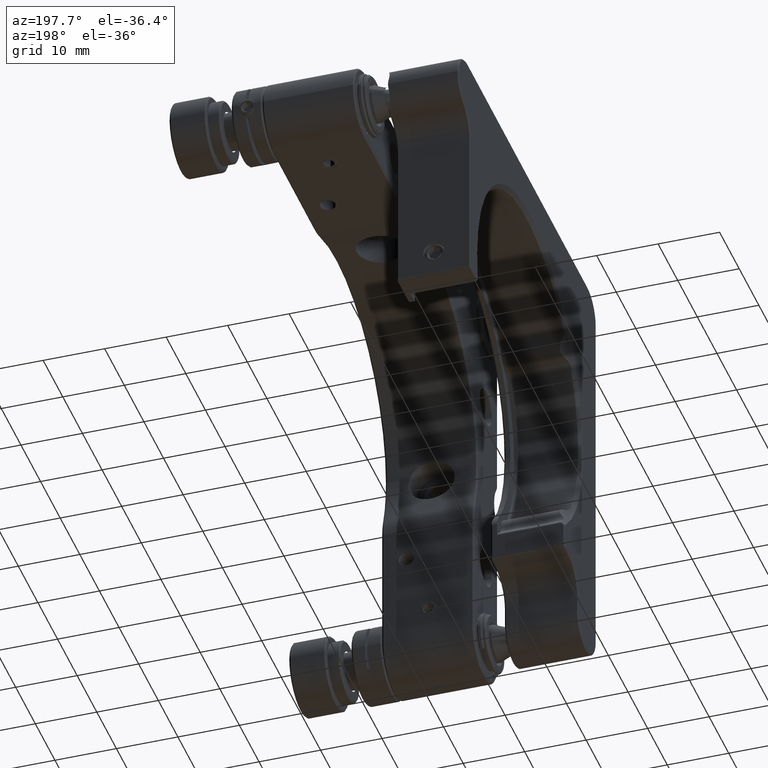
[diagram: clean part render]
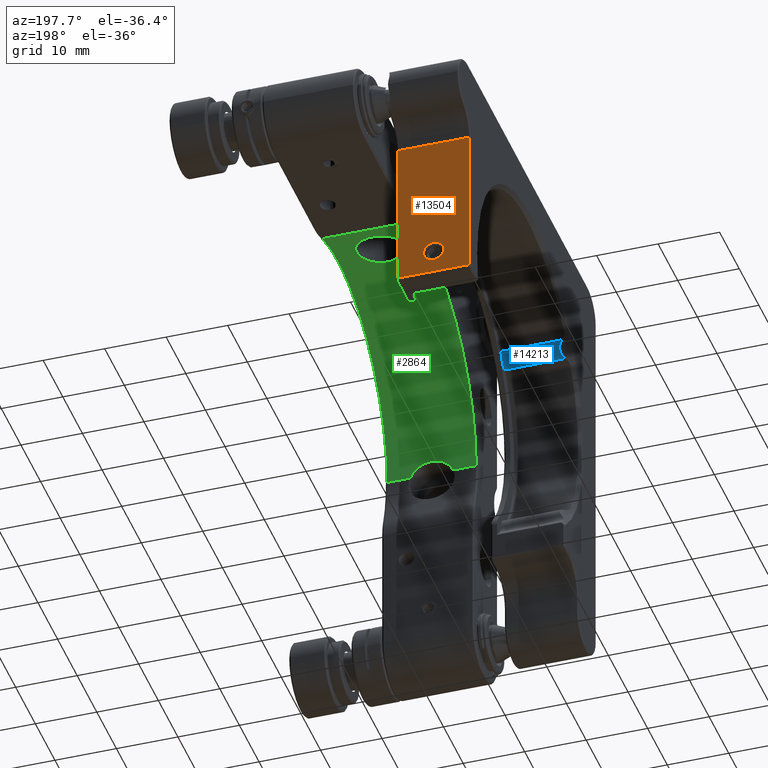
[diagram: same view with three faces highlighted in distinct colors, each labeled with its STEP entity id]
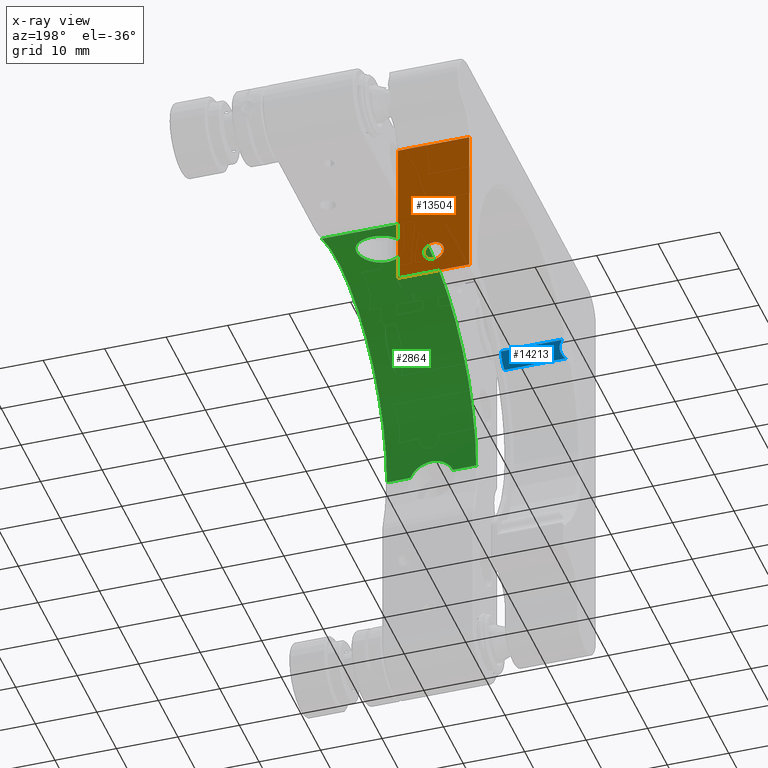
[diagram: x-ray of the same camera — body ghosted, the three highlighted faces saturated]
A machine part, auxiliary view with three faces highlighted in distinct colors.
The next image is the same camera in x-ray (body ghosted, the three faces saturated) — at least one of them is partly hidden behind the body in this view.
Their STEP definitions:

[orange] entity #13504 — the highlighted planar face has unit normal (0, -1, -0).
#392 = CARTESIAN_POINT ( 'NONE',  ( -15.77561932291418678, 27.64578127597494017, -20.49999999999996803 ) ) ;
#492 = VERTEX_POINT ( 'NONE', #6723 ) ;
#1038 = DIRECTION ( 'NONE',  ( -0.000000000000000000, -1.000000000000000000, -5.947623346206195330E-16 ) ) ;
#1345 = CARTESIAN_POINT ( 'NONE',  ( -15.77561932291418678, 27.64578127597492596, 4.001676391367753105 ) ) ;
#1489 = LINE ( 'NONE', #13045, #3906 ) ;
#1608 = CARTESIAN_POINT ( 'NONE',  ( -3.975619322914198506, 27.64578127597492596, 4.001676391367753105 ) ) ;
#2141 = EDGE_LOOP ( 'NONE', ( #4831, #7122, #14070, #10346 ) ) ;
#2482 = ORIENTED_EDGE ( 'NONE', *, *, #13797, .T. ) ;
#2495 = DIRECTION ( 'NONE',  ( 1.000000000000000000, -0.000000000000000000, -0.000000000000000000 ) ) ;
#2608 = EDGE_CURVE ( 'NONE', #7869, #8217, #7479, .T. ) ;
#2648 = FACE_OUTER_BOUND ( 'NONE', #2141, .T. ) ;
#2726 = DIRECTION ( 'NONE',  ( 0.000000000000000000, -1.000000000000000000, -5.161443248719169459E-16 ) ) ;
#2743 = EDGE_CURVE ( 'NONE', #492, #7869, #10936, .T. ) ;
#2761 = CARTESIAN_POINT ( 'NONE',  ( -4.175619322914223552, 27.64578127597494017, -20.99999999999997158 ) ) ;
#3903 = LINE ( 'NONE', #2761, #8363 ) ;
#3906 = VECTOR ( 'NONE', #2495, 1000.000000000000000 ) ;
#4831 = ORIENTED_EDGE ( 'NONE', *, *, #7947, .F. ) ;
#5188 = EDGE_CURVE ( 'NONE', #14472, #8576, #8652, .T. ) ;
#5482 = CIRCLE ( 'NONE', #8193, 1.649999999999998579 ) ;
#5758 = VECTOR ( 'NONE', #9871, 1000.000000000000000 ) ;
#5998 = CARTESIAN_POINT ( 'NONE',  ( -9.975619322914191400, 27.64578127597494017, -14.94999999999997087 ) ) ;
#6320 = DIRECTION ( 'NONE',  ( 0.000000000000000000, 0.000000000000000000, -1.000000000000000000 ) ) ;
#6723 = CARTESIAN_POINT ( 'NONE',  ( -4.175619322914223552, 27.64578127597492596, 4.001676391367753105 ) ) ;
#6771 = VERTEX_POINT ( 'NONE', #13104 ) ;
#6972 = CARTESIAN_POINT ( 'NONE',  ( -15.77561932291418678, 27.64578127597494017, -20.49999999999996803 ) ) ;
#7122 = ORIENTED_EDGE ( 'NONE', *, *, #2608, .F. ) ;
#7351 = CARTESIAN_POINT ( 'NONE',  ( -3.975619322914198506, 27.64578127597494017, -20.99999999999997158 ) ) ;
#7479 = LINE ( 'NONE', #392, #5758 ) ;
#7869 = VERTEX_POINT ( 'NONE', #1345 ) ;
#7947 = EDGE_CURVE ( 'NONE', #8217, #6771, #1489, .T. ) ;
#8193 = AXIS2_PLACEMENT_3D ( 'NONE', #9882, #14588, #6320 ) ;
#8217 = VERTEX_POINT ( 'NONE', #6972 ) ;
#8363 = VECTOR ( 'NONE', #13467, 1000.000000000000000 ) ;
#8576 = VERTEX_POINT ( 'NONE', #5998 ) ;
#8652 = CIRCLE ( 'NONE', #12842, 1.649999999999998579 ) ;
#9871 = DIRECTION ( 'NONE',  ( 0.000000000000000000, 5.161443248719169459E-16, -1.000000000000000000 ) ) ;
#9882 = CARTESIAN_POINT ( 'NONE',  ( -9.975619322914191400, 27.64578127597494017, -16.59999999999996945 ) ) ;
#10346 = ORIENTED_EDGE ( 'NONE', *, *, #11374, .F. ) ;
#10936 = LINE ( 'NONE', #1608, #12904 ) ;
#11005 = DIRECTION ( 'NONE',  ( -1.000000000000000000, 0.000000000000000000, 0.000000000000000000 ) ) ;
#11050 = FACE_BOUND ( 'NONE', #13719, .T. ) ;
#11374 = EDGE_CURVE ( 'NONE', #6771, #492, #3903, .T. ) ;
#11510 = CARTESIAN_POINT ( 'NONE',  ( -9.975619322914191400, 27.64578127597494017, -16.59999999999996945 ) ) ;
#11747 = DIRECTION ( 'NONE',  ( 0.000000000000000000, 0.000000000000000000, -1.000000000000000000 ) ) ;
#12060 = DIRECTION ( 'NONE',  ( 0.000000000000000000, -5.161443248719169459E-16, 1.000000000000000000 ) ) ;
#12294 = CARTESIAN_POINT ( 'NONE',  ( -9.975619322914191400, 27.64578127597494017, -18.24999999999996803 ) ) ;
#12842 = AXIS2_PLACEMENT_3D ( 'NONE', #11510, #1038, #11747 ) ;
#12904 = VECTOR ( 'NONE', #11005, 1000.000000000000000 ) ;
#13005 = ORIENTED_EDGE ( 'NONE', *, *, #5188, .T. ) ;
#13045 = CARTESIAN_POINT ( 'NONE',  ( -3.975619322914198506, 27.64578127597494017, -20.49999999999996803 ) ) ;
#13104 = CARTESIAN_POINT ( 'NONE',  ( -4.175619322914223552, 27.64578127597494017, -20.49999999999996803 ) ) ;
#13279 = PLANE ( 'NONE',  #13338 ) ;
#13338 = AXIS2_PLACEMENT_3D ( 'NONE', #7351, #2726, #12060 ) ;
#13467 = DIRECTION ( 'NONE',  ( 0.000000000000000000, -5.161443248719169459E-16, 1.000000000000000000 ) ) ;
#13504 = ADVANCED_FACE ( 'NONE', ( #11050, #2648 ), #13279, .F. ) ;
#13719 = EDGE_LOOP ( 'NONE', ( #13005, #2482 ) ) ;
#13797 = EDGE_CURVE ( 'NONE', #8576, #14472, #5482, .T. ) ;
#14070 = ORIENTED_EDGE ( 'NONE', *, *, #2743, .F. ) ;
#14472 = VERTEX_POINT ( 'NONE', #12294 ) ;
#14588 = DIRECTION ( 'NONE',  ( -0.000000000000000000, -1.000000000000000000, -5.947623346206195330E-16 ) ) ;

[blue] entity #14213 — the highlighted cylindrical surface (edge-blend (fillet) strip) has radius 2.5 mm, axis along (-1, 0, 0).
#932 = CARTESIAN_POINT ( 'NONE',  ( -4.975619322914199394, -24.85162957107865012, 0.3844438693433455123 ) ) ;
#983 = DIRECTION ( 'NONE',  ( -1.000000000000000000, 0.000000000000000000, 0.000000000000000000 ) ) ;
#1237 = ORIENTED_EDGE ( 'NONE', *, *, #1344, .T. ) ;
#1344 = EDGE_CURVE ( 'NONE', #1915, #3163, #11089, .T. ) ;
#1540 = CARTESIAN_POINT ( 'NONE',  ( -14.89309519452553943, -24.13905889188261966, -2.011853905798576037 ) ) ;
#1915 = VERTEX_POINT ( 'NONE', #6451 ) ;
#2116 = CARTESIAN_POINT ( 'NONE',  ( -14.38916313151577064, -23.05023161092638162, -1.354386013233912944 ) ) ;
#2147 = ORIENTED_EDGE ( 'NONE', *, *, #12085, .F. ) ;
#2477 = VECTOR ( 'NONE', #4811, 1000.000000000000000 ) ;
#3131 = EDGE_CURVE ( 'NONE', #4060, #8993, #5591, .T. ) ;
#3163 = VERTEX_POINT ( 'NONE', #11756 ) ;
#3243 = DIRECTION ( 'NONE',  ( 0.000000000000000000, -2.775557561562893323E-15, -1.000000000000000000 ) ) ;
#3388 = DIRECTION ( 'NONE',  ( -1.000000000000000000, 0.000000000000000000, 0.000000000000000000 ) ) ;
#3527 = CARTESIAN_POINT ( 'NONE',  ( 2.095448488951271671, -24.13905889188261966, -2.011853905798576037 ) ) ;
#3882 = CARTESIAN_POINT ( 'NONE',  ( -14.89309519452554120, -22.35255679983246679, 0.3163609491950783448 ) ) ;
#4060 = VERTEX_POINT ( 'NONE', #1540 ) ;
#4430 = CARTESIAN_POINT ( 'NONE',  ( -14.81812998388043390, -24.02533213774107779, -1.978035758787771714 ) ) ;
#4811 = DIRECTION ( 'NONE',  ( -1.000000000000000000, 0.000000000000000000, 0.000000000000000000 ) ) ;
#5312 = CYLINDRICAL_SURFACE ( 'NONE', #8695, 2.499999999999998224 ) ;
#5591 = B_SPLINE_CURVE_WITH_KNOTS ( 'NONE', 3,
 ( #12749, #4430, #5811, #9280, #15131, #7120, #10587, #2116, #11521, #14067, #8209, #11687, #8127, #9136, #12911, #12828 ),
 .UNSPECIFIED., .F., .F.,
 ( 4, 2, 2, 2, 2, 2, 2, 4 ),
 ( 2.443272006722786936E-07, 0.0004170436206648446857, 0.0008338429141290171686, 0.001250642207593189543, 0.001667441501057362026, 0.002501040087985701137, 0.002917839381449869717, 0.003334638674914038297 ),
 .UNSPECIFIED. ) ;
#5811 = CARTESIAN_POINT ( 'NONE',  ( -14.74893195429165793, -23.91216107078257380, -1.935644279927496436 ) ) ;
#5816 = CARTESIAN_POINT ( 'NONE',  ( 2.095448488951271671, -22.35255679983246679, 0.3163609491950783448 ) ) ;
#6451 = CARTESIAN_POINT ( 'NONE',  ( -4.975619322914199394, -22.35255679983246679, 0.3163609491950783448 ) ) ;
#7120 = CARTESIAN_POINT ( 'NONE',  ( -14.47528064229390310, -23.35474735833928150, -1.622208889450333258 ) ) ;
#7133 = DIRECTION ( 'NONE',  ( 1.000000000000000000, -0.000000000000000000, -0.000000000000000000 ) ) ;
#7786 = CARTESIAN_POINT ( 'NONE',  ( 2.095448488951271671, -24.85162957107865012, 0.3844438693433455123 ) ) ;
#8082 = EDGE_LOOP ( 'NONE', ( #10903, #2147, #1237, #8787 ) ) ;
#8127 = CARTESIAN_POINT ( 'NONE',  ( -14.62337906851865554, -22.41037020153542159, -0.1685311832697529155 ) ) ;
#8209 = CARTESIAN_POINT ( 'NONE',  ( -14.42835519124426469, -22.56912482879736714, -0.6689413095605695192 ) ) ;
#8695 = AXIS2_PLACEMENT_3D ( 'NONE', #7786, #983, #11254 ) ;
#8787 = ORIENTED_EDGE ( 'NONE', *, *, #14317, .F. ) ;
#8993 = VERTEX_POINT ( 'NONE', #3882 ) ;
#9136 = CARTESIAN_POINT ( 'NONE',  ( -14.74864066636700421, -22.36748097570729854, 0.07697927900878037688 ) ) ;
#9280 = CARTESIAN_POINT ( 'NONE',  ( -14.62405979788464805, -23.68694141858558666, -1.831162501580395396 ) ) ;
#9361 = LINE ( 'NONE', #5816, #2477 ) ;
#9520 = LINE ( 'NONE', #3527, #12390 ) ;
#10523 = FACE_OUTER_BOUND ( 'NONE', #8082, .T. ) ;
#10587 = CARTESIAN_POINT ( 'NONE',  ( -14.43904094983555453, -23.24987177676475270, -1.539857546687694478 ) ) ;
#10903 = ORIENTED_EDGE ( 'NONE', *, *, #3131, .T. ) ;
#11089 = CIRCLE ( 'NONE', #13545, 2.499999999999998224 ) ;
#11254 = DIRECTION ( 'NONE',  ( 0.000000000000000000, 0.000000000000000000, -1.000000000000000000 ) ) ;
#11521 = CARTESIAN_POINT ( 'NONE',  ( -14.37576520968918281, -22.95439908096490100, -1.249518125416835934 ) ) ;
#11687 = CARTESIAN_POINT ( 'NONE',  ( -14.56708827300837683, -22.44202162027854186, -0.2946375557147639657 ) ) ;
#11756 = CARTESIAN_POINT ( 'NONE',  ( -4.975619322914199394, -24.13905889188261966, -2.011853905798576037 ) ) ;
#12085 = EDGE_CURVE ( 'NONE', #1915, #8993, #9361, .T. ) ;
#12390 = VECTOR ( 'NONE', #7133, 1000.000000000000000 ) ;
#12749 = CARTESIAN_POINT ( 'NONE',  ( -14.89309519452553943, -24.13905889188261966, -2.011853905798576037 ) ) ;
#12828 = CARTESIAN_POINT ( 'NONE',  ( -14.89309519452554120, -22.35255679983246679, 0.3163609491950783448 ) ) ;
#12911 = CARTESIAN_POINT ( 'NONE',  ( -14.81801327716515360, -22.35579300184372542, 0.1975719150148150804 ) ) ;
#13545 = AXIS2_PLACEMENT_3D ( 'NONE', #932, #3388, #3243 ) ;
#14067 = CARTESIAN_POINT ( 'NONE',  ( -14.37533124781094074, -22.70026947556154084, -0.9189789596604712729 ) ) ;
#14213 = ADVANCED_FACE ( 'NONE', ( #10523 ), #5312, .T. ) ;
#14317 = EDGE_CURVE ( 'NONE', #4060, #3163, #9520, .T. ) ;
#15131 = CARTESIAN_POINT ( 'NONE',  ( -14.56785693124854220, -23.57365161692961664, -1.768248398933489174 ) ) ;

[green] entity #2864 — the highlighted cylindrical surface (partial cylindrical patch) has radius 25 mm, axis along (1, 0, 0).
#84 = CARTESIAN_POINT ( 'NONE',  ( 6.355119055246450266, -4.686390649295450572, 8.322494517069165099 ) ) ;
#116 = VERTEX_POINT ( 'NONE', #1769 ) ;
#210 = DIRECTION ( 'NONE',  ( 1.000000000000000000, 0.000000000000000000, 0.000000000000000000 ) ) ;
#306 = CARTESIAN_POINT ( 'NONE',  ( 4.457631252428867263, -2.515058442627934987, 8.400222909996664100 ) ) ;
#474 = CARTESIAN_POINT ( 'NONE',  ( 9.297112274175514557, -27.62617713439049538, -14.46940377622323126 ) ) ;
#625 = CARTESIAN_POINT ( 'NONE',  ( 11.74428386065613061, -0.8177761393367735110, 8.328906730681822523 ) ) ;
#691 = CARTESIAN_POINT ( 'NONE',  ( 10.31122267623304900, 1.661503445194326689, 8.013969662153218820 ) ) ;
#759 = CARTESIAN_POINT ( 'NONE',  ( 0.7696620513243588313, 5.407908999789143856, 7.042857142857173791 ) ) ;
#802 = VECTOR ( 'NONE', #12456, 1000.000000000000000 ) ;
#1128 = EDGE_LOOP ( 'NONE', ( #11578, #3823 ) ) ;
#1192 = DIRECTION ( 'NONE',  ( 1.000000000000000000, 0.000000000000000000, 0.000000000000000000 ) ) ;
#1245 = CARTESIAN_POINT ( 'NONE',  ( 8.019662051324344176, -5.067071376953116157, 8.289304932038605855 ) ) ;
#1333 = CIRCLE ( 'NONE', #10438, 25.00000000000000000 ) ;
#1369 = CARTESIAN_POINT ( 'NONE',  ( 0.5196620513243446204, -2.717071376953199113, -16.59999999999998721 ) ) ;
#1445 = EDGE_CURVE ( 'NONE', #11433, #7546, #8125, .T. ) ;
#1463 = CARTESIAN_POINT ( 'NONE',  ( 4.292627433277213633, -1.798732177915031594, 8.384289896191960523 ) ) ;
#1484 = CARTESIAN_POINT ( 'NONE',  ( 8.206797234739250158, -27.60638554727553995, -14.25009784447338390 ) ) ;
#1568 = CARTESIAN_POINT ( 'NONE',  ( 9.803016966641262542, -27.64459070681727226, -14.69601071402074233 ) ) ;
#1615 = CARTESIAN_POINT ( 'NONE',  ( 8.993902020358929050, -4.946751401980003848, 8.300419201644013256 ) ) ;
#1683 = ORIENTED_EDGE ( 'NONE', *, *, #8708, .T. ) ;
#1684 = CARTESIAN_POINT ( 'NONE',  ( 11.65186799902387094, -2.281152442412911263, 8.397353009905076604 ) ) ;
#1704 = CARTESIAN_POINT ( 'NONE',  ( 7.648934261970614656, -27.60768334695863402, -14.26372026764737733 ) ) ;
#1763 = B_SPLINE_CURVE_WITH_KNOTS ( 'NONE', 3,
 ( #12039, #6492, #13496, #5166, #3933, #8726, #1568, #11031, #474, #2631, #13421, #7332, #1484, #14427, #1704, #5253, #8556, #8485, #12271, #13260, #2865, #7412, #9798, #6402, #8641, #6174, #12355, #11118 ),
 .UNSPECIFIED., .F., .F.,
 ( 4, 2, 2, 2, 2, 2, 2, 2, 2, 2, 2, 2, 2, 4 ),
 ( 0.001427612264706267084, 0.002536700207198239274, 0.003645788149690211248, 0.004200332120936196151, 0.004754876092182181054, 0.005309420063428165089, 0.005863964034674150859, 0.006418508005920134894, 0.006973051977166120664, 0.008082139919658094807, 0.008636683890904080577, 0.009191227862150066347, 0.009745771833396053851, 0.01030031580464203962 ),
 .UNSPECIFIED. ) ;
#1767 = CARTESIAN_POINT ( 'NONE',  ( 10.31111923597440416, -4.295758529061281195, 8.350484458663931520 ) ) ;
#1769 = CARTESIAN_POINT ( 'NONE',  ( 8.019662051324344176, 2.432928623046886507, 7.863799786623496324 ) ) ;
#1844 = CARTESIAN_POINT ( 'NONE',  ( 10.49922059951713926, 1.506666076439506119, 8.041234576609543439 ) ) ;
#1916 = CARTESIAN_POINT ( 'NONE',  ( 9.234742481570354045, 2.238991879536007090, 7.904011109550980407 ) ) ;
#2221 = VECTOR ( 'NONE', #1192, 1000.000000000000000 ) ;
#2462 = B_SPLINE_CURVE_WITH_KNOTS ( 'NONE', 3,
 ( #4922, #5929, #8467, #9627, #13018, #8253, #8392, #10863, #13169, #9551, #2615, #12949, #13238, #5005, #7316, #6150, #3623, #13098, #1463, #14257, #306, #7389, #10710, #8319, #7168, #9710, #14117, #2544, #84, #14406, #7244, #11801, #4783, #1245 ),
 .UNSPECIFIED., .F., .F.,
 ( 4, 2, 2, 2, 2, 2, 2, 2, 2, 2, 2, 2, 2, 2, 2, 2, 4 ),
 ( 0.000000000000000000, 0.0007343958136860281611, 0.001468791627372056322, 0.002203187441058084700, 0.002937583254744112644, 0.003671979068430140589, 0.004406374882116169400, 0.005140770695802197345, 0.005875166509488225289, 0.006609562323174253233, 0.007343958136860281177, 0.008078353950546309989, 0.008812749764232338801, 0.009547145577918364143, 0.01028154139160439122, 0.01101593720529041830, 0.01175033301897644537 ),
 .UNSPECIFIED. ) ;
#2499 = EDGE_CURVE ( 'NONE', #7243, #11433, #1333, .T. ) ;
#2544 = CARTESIAN_POINT ( 'NONE',  ( 6.135187607850670410, -4.568406956778403583, 8.331731191711801543 ) ) ;
#2615 = CARTESIAN_POINT ( 'NONE',  ( 5.041998441424860644, 0.9756284893650447598, 8.126635400144452959 ) ) ;
#2631 = CARTESIAN_POINT ( 'NONE',  ( 8.942025221183198980, -27.61661877488236527, -14.36046226148193306 ) ) ;
#2688 = VECTOR ( 'NONE', #9643, 1000.000000000000000 ) ;
#2845 = CARTESIAN_POINT ( 'NONE',  ( 11.58017271530138892, -2.519588658985774110, 8.400258809522531678 ) ) ;
#2864 = ADVANCED_FACE ( 'NONE', ( #8673, #13216 ), #14454, .F. ) ;
#2865 = CARTESIAN_POINT ( 'NONE',  ( 5.622671255604727136, -27.67295314655115845, -15.11007883074591618 ) ) ;
#3078 = CARTESIAN_POINT ( 'NONE',  ( 8.513316294977574472, 2.408504770087766200, 7.868978827544526489 ) ) ;
#3623 = CARTESIAN_POINT ( 'NONE',  ( 4.270469523545158630, -1.060245876484345651, 8.346242689245880086 ) ) ;
#3823 = ORIENTED_EDGE ( 'NONE', *, *, #4770, .T. ) ;
#3824 = ORIENTED_EDGE ( 'NONE', *, *, #10874, .F. ) ;
#3933 = CARTESIAN_POINT ( 'NONE',  ( 10.42926938468723463, -27.67306015413422671, -15.10249900322506988 ) ) ;
#3996 = CARTESIAN_POINT ( 'NONE',  ( 11.27692082977375954, -3.191360697121754519, 8.396335389451946796 ) ) ;
#4064 = VERTEX_POINT ( 'NONE', #14475 ) ;
#4078 = CARTESIAN_POINT ( 'NONE',  ( 9.230260548658165476, -4.874712313852889167, 8.306895240647964584 ) ) ;
#4124 = EDGE_LOOP ( 'NONE', ( #3824, #4620, #4139, #1683, #6867, #11987 ) ) ;
#4139 = ORIENTED_EDGE ( 'NONE', *, *, #1445, .T. ) ;
#4161 = CARTESIAN_POINT ( 'NONE',  ( 11.49852680868414190, -27.71707137695320000, -16.59999999999999432 ) ) ;
#4236 = CARTESIAN_POINT ( 'NONE',  ( 9.901971383561962270, 1.935630522473545279, 7.963627277696871509 ) ) ;
#4400 = DIRECTION ( 'NONE',  ( -1.000000000000000000, -0.000000000000000000, -0.000000000000000000 ) ) ;
#4541 = AXIS2_PLACEMENT_3D ( 'NONE', #1369, #6052, #13289 ) ;
#4620 = ORIENTED_EDGE ( 'NONE', *, *, #2499, .T. ) ;
#4690 = DIRECTION ( 'NONE',  ( 0.000000000000000000, -1.000000000000000000, -2.775557561562891351E-16 ) ) ;
#4770 = EDGE_CURVE ( 'NONE', #4064, #116, #8426, .T. ) ;
#4783 = CARTESIAN_POINT ( 'NONE',  ( 7.774585282484783200, -5.067071376953116157, 8.289304932038607632 ) ) ;
#4886 = CARTESIAN_POINT ( 'NONE',  ( 15.26966205132432997, 5.407908999789143856, 7.042857142857173791 ) ) ;
#4922 = CARTESIAN_POINT ( 'NONE',  ( 8.019662051324344176, 2.432928623046886507, 7.863799786623496324 ) ) ;
#5005 = CARTESIAN_POINT ( 'NONE',  ( 4.464841855368596235, -0.09846845834542791720, 8.263508301478415419 ) ) ;
#5073 = CARTESIAN_POINT ( 'NONE',  ( 11.57550484320103479, -0.1012107621962463899, 8.263807675675282738 ) ) ;
#5144 = CARTESIAN_POINT ( 'NONE',  ( 10.50004160351645943, -4.140243844147073915, 8.360062941182095031 ) ) ;
#5166 = CARTESIAN_POINT ( 'NONE',  ( 10.70149170564334895, -27.68761581595779120, -15.35230524018485809 ) ) ;
#5253 = CARTESIAN_POINT ( 'NONE',  ( 7.280344267247946810, -27.61279922159788924, -14.31888134579494576 ) ) ;
#5307 = CARTESIAN_POINT ( 'NONE',  ( 11.64810647833949808, -0.3390660615692852597, 8.287804320724472262 ) ) ;
#5379 = CARTESIAN_POINT ( 'NONE',  ( 9.685200031894042993, 2.051606341588488647, 7.941166155584463482 ) ) ;
#5929 = CARTESIAN_POINT ( 'NONE',  ( 7.771290569586889241, 2.432928623046886507, 7.863799786623498100 ) ) ;
#6052 = DIRECTION ( 'NONE',  ( 1.000000000000000000, 0.000000000000000000, 0.000000000000000000 ) ) ;
#6150 = CARTESIAN_POINT ( 'NONE',  ( 4.294983168706576038, -0.8172025137701131037, 8.328882102201037085 ) ) ;
#6174 = CARTESIAN_POINT ( 'NONE',  ( 4.693428340901688145, -27.71524952612481840, -16.25842063705738738 ) ) ;
#6249 = LINE ( 'NONE', #12118, #2688 ) ;
#6368 = CARTESIAN_POINT ( 'NONE',  ( 15.26966205132432997, -2.717071376953199113, -16.59999999999998721 ) ) ;
#6402 = CARTESIAN_POINT ( 'NONE',  ( 4.986850414846803581, -27.70425308182220903, -15.78667720015410403 ) ) ;
#6467 = CARTESIAN_POINT ( 'NONE',  ( 11.74634982568367647, -1.800983124818974268, 8.384364413240589897 ) ) ;
#6492 = CARTESIAN_POINT ( 'NONE',  ( 11.35950178135570177, -27.71707137695321066, -16.25453623716863660 ) ) ;
#6546 = CARTESIAN_POINT ( 'NONE',  ( 11.27247223620280181, 0.5647929310802801695, 8.184499609267074760 ) ) ;
#6616 = CARTESIAN_POINT ( 'NONE',  ( 8.019662051324344176, 2.432928623046886507, 7.863799786623496324 ) ) ;
#6867 = ORIENTED_EDGE ( 'NONE', *, *, #10388, .F. ) ;
#6982 = VERTEX_POINT ( 'NONE', #4161 ) ;
#7168 = CARTESIAN_POINT ( 'NONE',  ( 5.189032748565749920, -3.789212172507073539, 8.377618065408864112 ) ) ;
#7237 = DIRECTION ( 'NONE',  ( 0.000000000000000000, -1.000000000000000000, -2.775557561562891351E-16 ) ) ;
#7243 = VERTEX_POINT ( 'NONE', #13707 ) ;
#7244 = CARTESIAN_POINT ( 'NONE',  ( 7.043656635910901187, -4.946164854595881621, 8.300471526002569433 ) ) ;
#7316 = CARTESIAN_POINT ( 'NONE',  ( 4.392295643789169368, -0.3345671253165287684, 8.287393155042671822 ) ) ;
#7332 = CARTESIAN_POINT ( 'NONE',  ( 8.391122681660425187, -27.60769388003703639, -14.26383398225722310 ) ) ;
#7389 = CARTESIAN_POINT ( 'NONE',  ( 4.645052729420601878, -2.970930000392400405, 8.399750210241350601 ) ) ;
#7412 = CARTESIAN_POINT ( 'NONE',  ( 5.348032711555662289, -27.68671278969964078, -15.36189349908791613 ) ) ;
#7546 = VERTEX_POINT ( 'NONE', #4886 ) ;
#7672 = CIRCLE ( 'NONE', #12093, 25.00000000000000000 ) ;
#7681 = CARTESIAN_POINT ( 'NONE',  ( 0.5196620513243446204, -27.71707137695320000, -16.59999999999999432 ) ) ;
#7709 = CARTESIAN_POINT ( 'NONE',  ( 10.84332950915996463, 1.162566880367562172, 8.097749017410942329 ) ) ;
#7756 = LINE ( 'NONE', #7681, #802 ) ;
#7782 = CARTESIAN_POINT ( 'NONE',  ( 11.77021388541643887, -1.556028841825527032, 8.374255037014014746 ) ) ;
#8078 = EDGE_CURVE ( 'NONE', #116, #4064, #2462, .T. ) ;
#8125 = LINE ( 'NONE', #9131, #2221 ) ;
#8253 = CARTESIAN_POINT ( 'NONE',  ( 6.355170779266132719, 2.052240866942399489, 7.941044639517202519 ) ) ;
#8319 = CARTESIAN_POINT ( 'NONE',  ( 5.033535579088491474, -3.598628069373086102, 8.385284395815649106 ) ) ;
#8392 = CARTESIAN_POINT ( 'NONE',  ( 6.140167575029782832, 1.937132588375809705, 7.963335920158280956 ) ) ;
#8412 = VERTEX_POINT ( 'NONE', #13882 ) ;
#8426 = B_SPLINE_CURVE_WITH_KNOTS ( 'NONE', 3,
 ( #14648, #10016, #9939, #1615, #4078, #8947, #11249, #1767, #5144, #11012, #9858, #3996, #8705, #2845, #1684, #6467, #7782, #11177, #625, #5307, #5073, #8858, #6546, #10087, #7709, #1844, #691, #4236, #5379, #1916, #14797, #3078, #12481, #6616 ),
 .UNSPECIFIED., .F., .F.,
 ( 4, 2, 2, 2, 2, 2, 2, 2, 2, 2, 2, 2, 2, 2, 2, 2, 4 ),
 ( 0.01175033301897644537, 0.01248457509687355381, 0.01321881717477066051, 0.01395305925266776895, 0.01468730133056487565, 0.01542154340846198408, 0.01615578548635909079, 0.01689002756425619922, 0.01762426964215330766, 0.01835851172005041609, 0.01909275379794752106, 0.01982699587584462950, 0.02056123795374173793, 0.02129548003163884290, 0.02202972210953595134, 0.02276396418743305977, 0.02349820626533016821 ),
 .UNSPECIFIED. ) ;
#8467 = CARTESIAN_POINT ( 'NONE',  ( 7.527201325293409795, 2.408498044508001090, 7.868978750568413005 ) ) ;
#8485 = CARTESIAN_POINT ( 'NONE',  ( 6.569606965836116252, -27.63079621933156105, -14.52199880436184820 ) ) ;
#8556 = CARTESIAN_POINT ( 'NONE',  ( 7.099868337173728783, -27.61656338083787787, -14.35985679672327464 ) ) ;
#8641 = CARTESIAN_POINT ( 'NONE',  ( 4.881603063610483240, -27.70883183294282759, -15.93856478069091409 ) ) ;
#8673 = FACE_OUTER_BOUND ( 'NONE', #4124, .T. ) ;
#8705 = CARTESIAN_POINT ( 'NONE',  ( 11.39208643953439193, -2.975395153447783603, 8.399704174119786870 ) ) ;
#8708 = EDGE_CURVE ( 'NONE', #7546, #11880, #7672, .T. ) ;
#8726 = CARTESIAN_POINT ( 'NONE',  ( 9.965628812423490857, -27.65161071144840577, -14.78900042875675069 ) ) ;
#8858 = CARTESIAN_POINT ( 'NONE',  ( 11.38742456210887610, 0.3504149546288261030, 8.212137886412834931 ) ) ;
#8947 = CARTESIAN_POINT ( 'NONE',  ( 9.682247716326356723, -4.687259304084451905, 8.322423727899813883 ) ) ;
#9131 = CARTESIAN_POINT ( 'NONE',  ( 0.5196620513243446204, 5.407908999789143856, 7.042857142857173791 ) ) ;
#9551 = CARTESIAN_POINT ( 'NONE',  ( 5.196805710935749723, 1.163507137280292314, 8.097601715568719882 ) ) ;
#9627 = CARTESIAN_POINT ( 'NONE',  ( 7.047199663935646008, 2.312901348278206815, 7.888808818997601335 ) ) ;
#9643 = DIRECTION ( 'NONE',  ( 1.000000000000000000, 0.000000000000000000, 0.000000000000000000 ) ) ;
#9710 = CARTESIAN_POINT ( 'NONE',  ( 5.539056715316706736, -4.140285773637891964, 8.360075137867665873 ) ) ;
#9762 = CARTESIAN_POINT ( 'NONE',  ( 15.26966205132432997, -27.71707137695320000, -16.59999999999999432 ) ) ;
#9798 = CARTESIAN_POINT ( 'NONE',  ( 5.219497116476860654, -27.69322363699457057, -15.49883615564236550 ) ) ;
#9858 = CARTESIAN_POINT ( 'NONE',  ( 11.00494521119617630, -3.599784600481130248, 8.385246659302815431 ) ) ;
#9939 = CARTESIAN_POINT ( 'NONE',  ( 8.508553997350437825, -5.043290005328875836, 8.291586054821888041 ) ) ;
#10016 = CARTESIAN_POINT ( 'NONE',  ( 8.264687516671015644, -5.067071376953117046, 8.289304932038609408 ) ) ;
#10087 = CARTESIAN_POINT ( 'NONE',  ( 11.00080820807610671, 0.9709310191958080427, 8.127326837814539573 ) ) ;
#10388 = EDGE_CURVE ( 'NONE', #6982, #11880, #7756, .T. ) ;
#10438 = AXIS2_PLACEMENT_3D ( 'NONE', #15233, #4400, #4690 ) ;
#10710 = CARTESIAN_POINT ( 'NONE',  ( 4.762210954190281953, -3.190961608181770881, 8.396339863877781085 ) ) ;
#10863 = CARTESIAN_POINT ( 'NONE',  ( 5.733324642100343205, 1.665377983147933172, 8.013273323220779787 ) ) ;
#10874 = EDGE_CURVE ( 'NONE', #7243, #8412, #6249, .T. ) ;
#11012 = CARTESIAN_POINT ( 'NONE',  ( 10.84644584140882806, -3.793334470117970980, 8.377426201541299022 ) ) ;
#11031 = CARTESIAN_POINT ( 'NONE',  ( 9.469280071827297363, -27.63189980296185055, -14.53657574783511919 ) ) ;
#11118 = CARTESIAN_POINT ( 'NONE',  ( 4.540797293964165426, -27.71707137695325684, -16.59999999999978471 ) ) ;
#11177 = CARTESIAN_POINT ( 'NONE',  ( 11.76909091188552026, -1.061096866853442400, 8.346326039000121710 ) ) ;
#11249 = CARTESIAN_POINT ( 'NONE',  ( 9.901170437021455939, -4.570266632969893550, 8.331598328012157495 ) ) ;
#11433 = VERTEX_POINT ( 'NONE', #759 ) ;
#11578 = ORIENTED_EDGE ( 'NONE', *, *, #8078, .T. ) ;
#11801 = CARTESIAN_POINT ( 'NONE',  ( 7.525675335891632400, -5.042508688915517290, 8.291658869136609766 ) ) ;
#11880 = VERTEX_POINT ( 'NONE', #9762 ) ;
#11987 = ORIENTED_EDGE ( 'NONE', *, *, #13831, .T. ) ;
#12039 = CARTESIAN_POINT ( 'NONE',  ( 11.49852680868414190, -27.71707137695320000, -16.59999999999999432 ) ) ;
#12093 = AXIS2_PLACEMENT_3D ( 'NONE', #6368, #210, #7237 ) ;
#12118 = CARTESIAN_POINT ( 'NONE',  ( 0.5196620513243446204, -27.71707137695320000, -16.59999999999999432 ) ) ;
#12271 = CARTESIAN_POINT ( 'NONE',  ( 6.227311292948369825, -27.64451212827828641, -14.68540988297900896 ) ) ;
#12355 = CARTESIAN_POINT ( 'NONE',  ( 4.610133444687291693, -27.71707137695320355, -16.42770636345689539 ) ) ;
#12456 = DIRECTION ( 'NONE',  ( 1.000000000000000000, 0.000000000000000000, 0.000000000000000000 ) ) ;
#12481 = CARTESIAN_POINT ( 'NONE',  ( 8.267981539865520091, 2.432928623046886951, 7.863799786623498100 ) ) ;
#12949 = CARTESIAN_POINT ( 'NONE',  ( 4.768130882798046422, 0.5672052245141293580, 8.184189672439115881 ) ) ;
#13018 = CARTESIAN_POINT ( 'NONE',  ( 6.808749944562549672, 2.240524449067584634, 7.903702881490580090 ) ) ;
#13098 = CARTESIAN_POINT ( 'NONE',  ( 4.268893453869030630, -1.549749000263604959, 8.373935483192017415 ) ) ;
#13169 = CARTESIAN_POINT ( 'NONE',  ( 5.541287826482816925, 1.507720453499115321, 8.041054240744998083 ) ) ;
#13216 = FACE_BOUND ( 'NONE', #1128, .T. ) ;
#13238 = CARTESIAN_POINT ( 'NONE',  ( 4.652188467476222833, 0.3508199147380159921, 8.212077086076297050 ) ) ;
#13260 = CARTESIAN_POINT ( 'NONE',  ( 5.767979001078265888, -27.66575004504530355, -14.99557731627844959 ) ) ;
#13289 = DIRECTION ( 'NONE',  ( 0.000000000000000000, -1.000000000000000000, -2.775557561562891351E-16 ) ) ;
#13421 = CARTESIAN_POINT ( 'NONE',  ( 8.758087214913031104, -27.61278647100428429, -14.31874372125430206 ) ) ;
#13496 = CARTESIAN_POINT ( 'NONE',  ( 11.17176932493812913, -27.70990642731432985, -15.93439655994466264 ) ) ;
#13707 = CARTESIAN_POINT ( 'NONE',  ( 0.7696620513243588313, -27.71707137695320000, -16.59999999999999432 ) ) ;
#13831 = EDGE_CURVE ( 'NONE', #6982, #8412, #1763, .T. ) ;
#13882 = CARTESIAN_POINT ( 'NONE',  ( 4.540797293964165426, -27.71707137695325684, -16.59999999999978471 ) ) ;
#14117 = CARTESIAN_POINT ( 'NONE',  ( 5.728487863275699254, -4.295820748881356010, 8.350475227248443488 ) ) ;
#14257 = CARTESIAN_POINT ( 'NONE',  ( 4.387249197529143885, -2.280586312430723517, 8.397351245479958592 ) ) ;
#14406 = CARTESIAN_POINT ( 'NONE',  ( 6.809543463079395842, -4.874968051556456849, 8.306875221341949000 ) ) ;
#14427 = CARTESIAN_POINT ( 'NONE',  ( 7.836469037474204313, -27.60636716852954464, -14.24990319157339336 ) ) ;
#14454 = CYLINDRICAL_SURFACE ( 'NONE', #4541, 25.00000000000000000 ) ;
#14475 = CARTESIAN_POINT ( 'NONE',  ( 8.019662051324344176, -5.067071376953116157, 8.289304932038605855 ) ) ;
#14648 = CARTESIAN_POINT ( 'NONE',  ( 8.019662051324344176, -5.067071376953116157, 8.289304932038605855 ) ) ;
#14797 = CARTESIAN_POINT ( 'NONE',  ( 8.998116116275566512, 2.311459976426273322, 7.889106315462333541 ) ) ;
#15233 = CARTESIAN_POINT ( 'NONE',  ( 0.7696620513243588313, -2.717071376953199113, -16.59999999999998721 ) ) ;